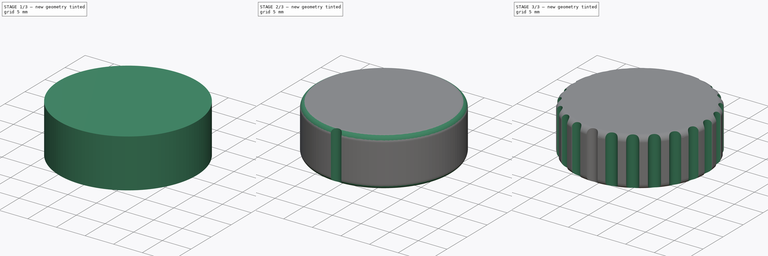
[diagram: build sequence overview — one tinted view per stage of 3, left to right]
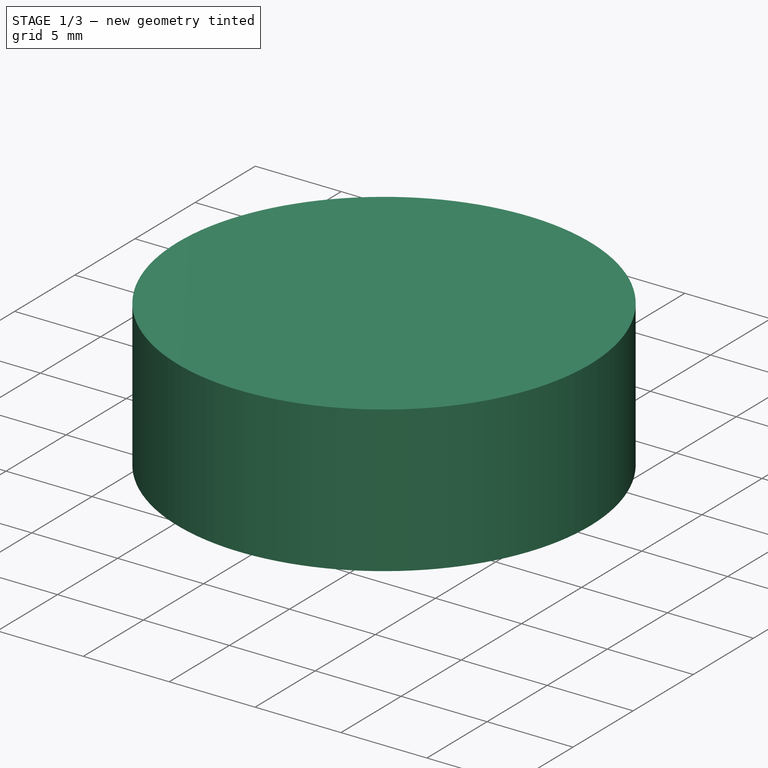
[diagram: stage 1 of 3 — iso view after this stage's code; geometry added in this stage tinted green]
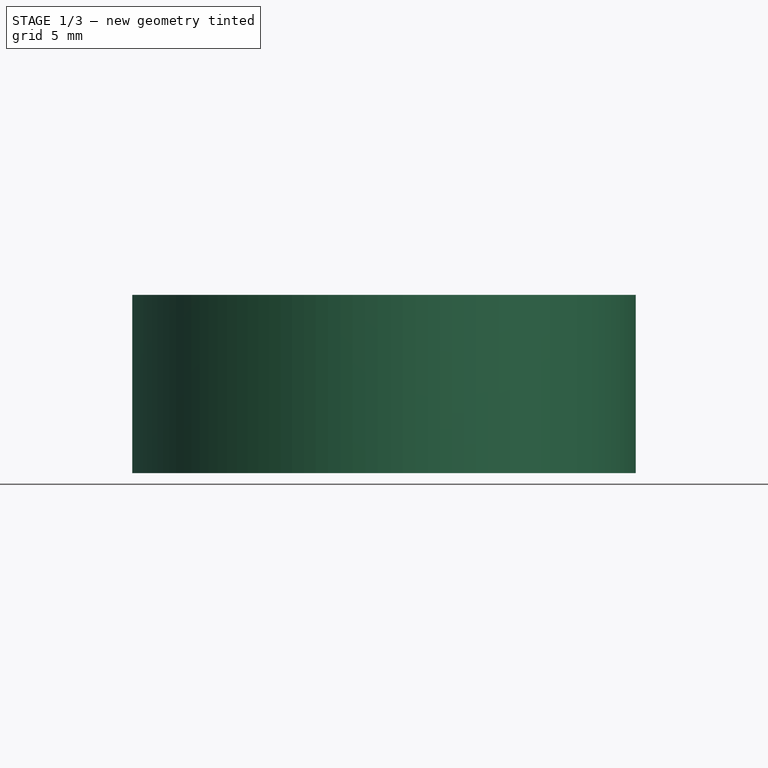
[diagram: stage 1 of 3 — front view after this stage's code; geometry added in this stage tinted green]
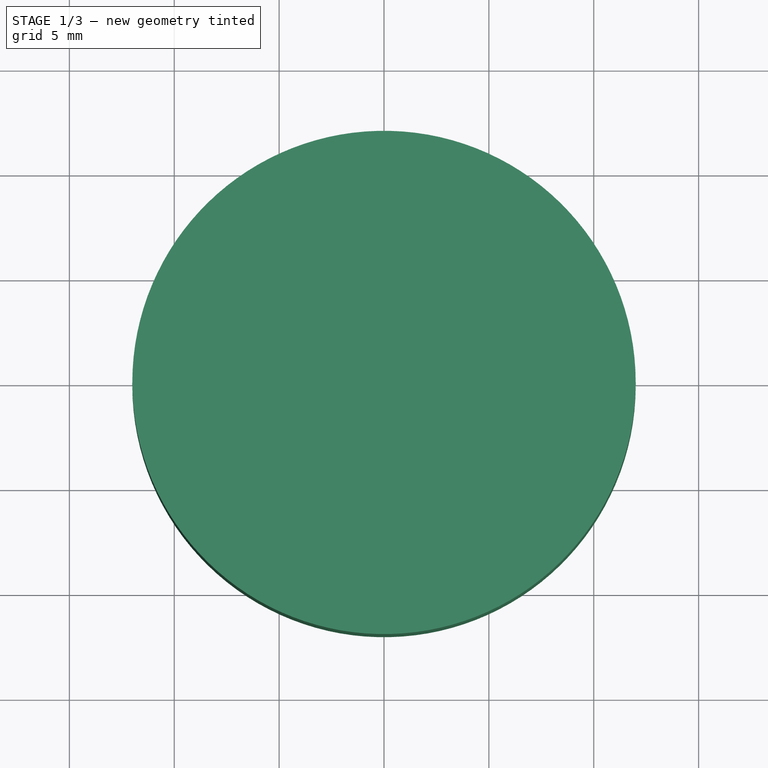
[diagram: stage 1 of 3 — top view after this stage's code; geometry added in this stage tinted green]
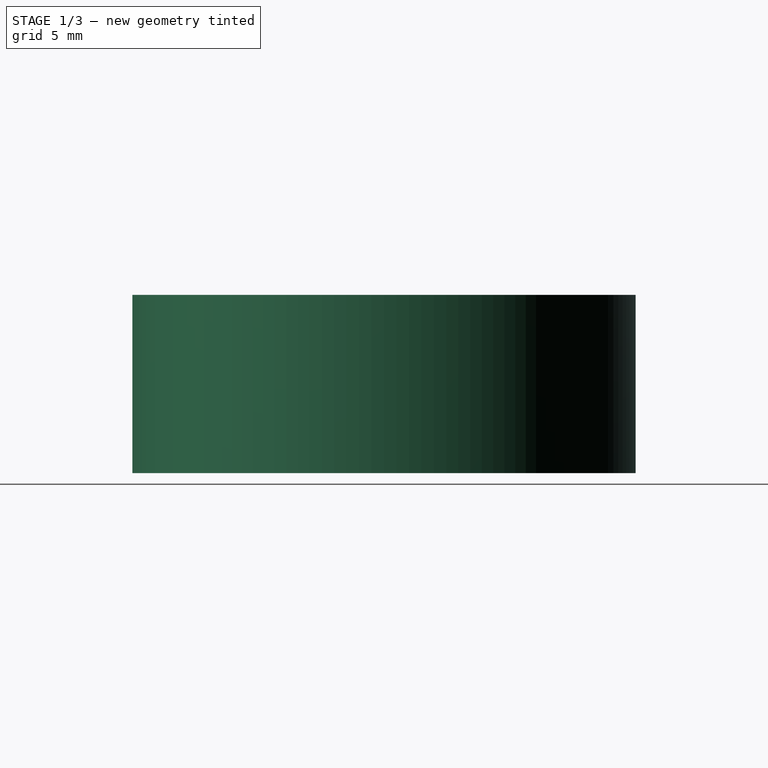
[diagram: stage 1 of 3 — right view after this stage's code; geometry added in this stage tinted green]
FCSTD DOCUMENT  (FreeCAD 0.16R5861 (Git))
Label: lcd_knob_v0.2
License: All rights reserved
LicenseURL: http://en.wikipedia.org/wiki/All_rights_reserved
objects: Sketcher::SketchObject×8, PartDesign::Pocket×3, PartDesign::Fillet×2, PartDesign::Pad×1, PartDesign::PolarPattern×1
note: 19 computed .brp shape members not serialized (recipe doc carries the construction recipe); baked Part::Feature solids carry a one-line shape summary decoded from their .brp

FEATURE [Sketcher::SketchObject] Sketch
  sketch-geometry (1):
    g0: Circle CenterX=0 CenterY=0 CenterZ=0 NormalX=0 NormalY=0 NormalZ=1 Radius=12
  constraints (2):
    c: Coincident(g0,g-1)
    c: Radius(g0) = 12
FEATURE [PartDesign::Pad] Pad
  Length = 14
  Length2 = 100
  Sketch = -> Sketch
  Type = 0
FEATURE [Sketcher::SketchObject] Sketch005
  Placement = pos=(0,0,0) rot=(1,0,0;3.14159rad)
  sketch-geometry (4):
    g0: LineSegment StartX=-14.9 StartY=1.5 StartZ=0 EndX=-11.9 EndY=1.5 EndZ=0
    g1: LineSegment StartX=-11.9 StartY=1.5 StartZ=0 EndX=-11.9 EndY=-1.5 EndZ=0
    g2: LineSegment StartX=-11.9 StartY=-1.5 StartZ=0 EndX=-14.9 EndY=-1.5 EndZ=0
    g3: LineSegment StartX=-14.9 StartY=-1.5 StartZ=0 EndX=-14.9 EndY=1.5 EndZ=0
  constraints (12):
    c: Coincident(g0,g1)
    c: Coincident(g1,g2)
    c: Coincident(g2,g3)
    c: Coincident(g3,g0)
    c: Horizontal(g0)
    c: Horizontal(g2)
    c: Vertical(g1)
    c: Vertical(g3)
    c: DistanceY(g1) = -3
    c: DistanceY(g-1,g1) = -1.5
    c: DistanceX(g-1,g0) = -11.9
    c: DistanceX(g2) = -3
FEATURE [Sketcher::SketchObject] Sketch006
  Placement = pos=(-11.9,0,0) rot=(0.57735,-0.57735,-0.57735;2.0944rad)
  sketch-geometry (1):
    g0: Circle CenterX=0 CenterY=3 CenterZ=0 NormalX=0 NormalY=0 NormalZ=1 Radius=1.75
  constraints (3):
    c: PointOnObject(g0,g-2)
    c: DistanceY(g-1,g0) = 3
    c: Radius(g0) = 1.75
FEATURE [Sketcher::SketchObject] Sketch007
  Placement = pos=(0,0,0) rot=(1,0,0;3.14159rad)
  sketch-geometry (6):
    g0: LineSegment StartX=-7.5 StartY=3 StartZ=0 EndX=-5 EndY=3 EndZ=0
    g1: LineSegment StartX=-5 StartY=3 StartZ=0 EndX=-5 EndY=-3 EndZ=0
    g2: LineSegment StartX=-5 StartY=-3 StartZ=0 EndX=-7.5 EndY=-3 EndZ=0
    g3: LineSegment StartX=-7.5 StartY=-3 StartZ=0 EndX=-7.5 EndY=3 EndZ=0
    g4: LineSegment [constr] StartX=-5 StartY=-3 StartZ=0 EndX=0 EndY=0 EndZ=0
    g5: LineSegment [constr] StartX=0 StartY=0 StartZ=0 EndX=-5 EndY=3 EndZ=0
  constraints (16):
    c: Coincident(g0,g1)
    c: Coincident(g1,g2)
    c: Coincident(g2,g3)
    c: Coincident(g3,g0)
    c: Horizontal(g0)
    c: Horizontal(g2)
    c: Vertical(g1)
    c: Vertical(g3)
    c: Coincident(g1,g4)
    c: Coincident(g4,g-1)
    c: Coincident(g4,g5)
    c: Coincident(g5,g0)
    c: Equal(g5,g4)
    c: DistanceX(g0) = 2.5
    c: DistanceY(g1) = -6
    c: DistanceX(g-1,g0) = -5
FEATURE [Sketcher::SketchObject] Sketch009
  Placement = pos=(0,0,14) rot=(0,0,1;0rad)
  Support = -> Pad [Face3]
  sketch-geometry (3):
    g0: LineSegment [constr] StartX=5 StartY=-14.6007 StartZ=0 EndX=5 EndY=15.1118 EndZ=0
    g1: ArcOfCircle CenterX=5 CenterY=0 CenterZ=0 NormalX=0 NormalY=0 NormalZ=1 Radius=9 StartAngle=4.71239 EndAngle=7.85398
    g2: LineSegment StartX=5 StartY=9 StartZ=0 EndX=5 EndY=-9 EndZ=0
  constraints (10):
    c: Vertical(g0)
    c: DistanceX(g-1,g0) = 5
    c: Radius(g1) = 9
    c: PointOnObject(g1,g-1)
    c: PointOnObject(g1,g0)
    c: PointOnObject(g1,g0)
    c: PointOnObject(g1,g0)
    c: Vertical(g2)
    c: Coincident(g2,g1)
    c: Coincident(g2,g1)
FEATURE [Sketcher::SketchObject] Sketch010
  Placement = pos=(0,0,14) rot=(0,0,1;0rad)
  Support = -> Pad [Face3]
  sketch-geometry (1):
    g0: Circle CenterX=0 CenterY=0 CenterZ=0 NormalX=0 NormalY=0 NormalZ=1 Radius=15
  constraints (2):
    c: Coincident(g0,g-1)
    c: Radius(g0) = 15
FEATURE [PartDesign::Pocket] Pocket
  Length = 5.5
  Sketch = -> Sketch010
  Type = 0
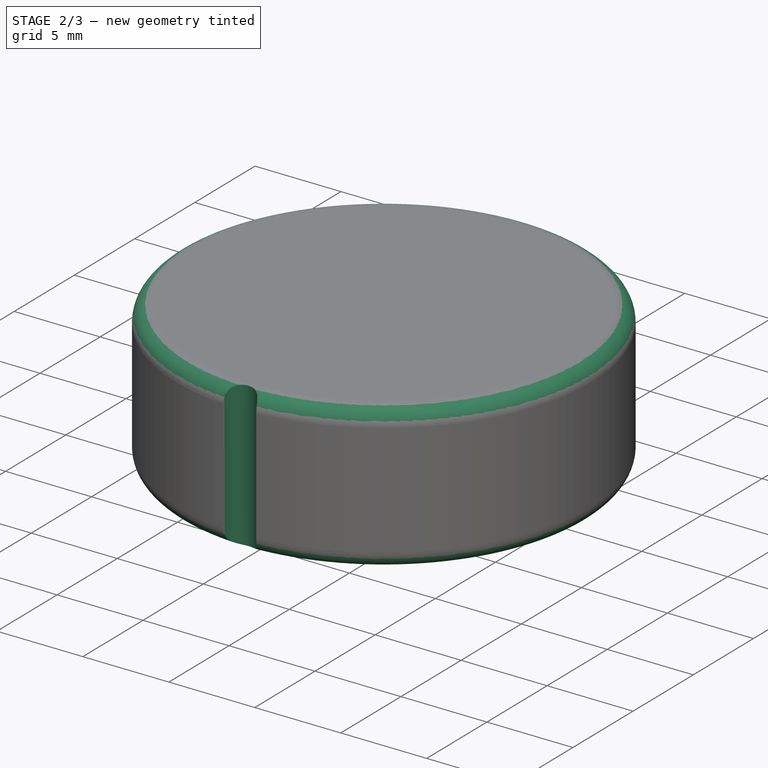
[diagram: stage 2 of 3 — iso view after this stage's code; geometry added in this stage tinted green]
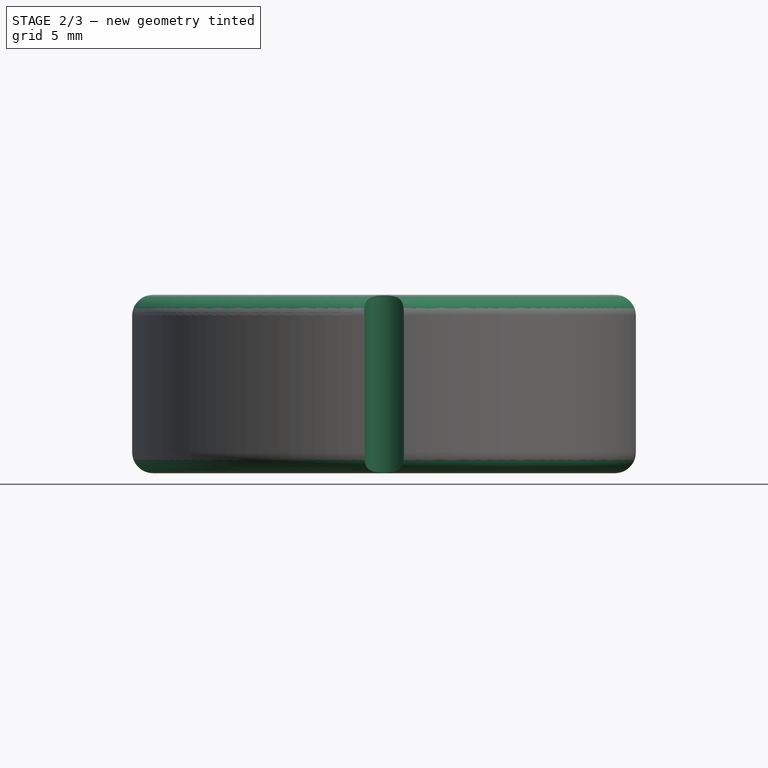
[diagram: stage 2 of 3 — front view after this stage's code; geometry added in this stage tinted green]
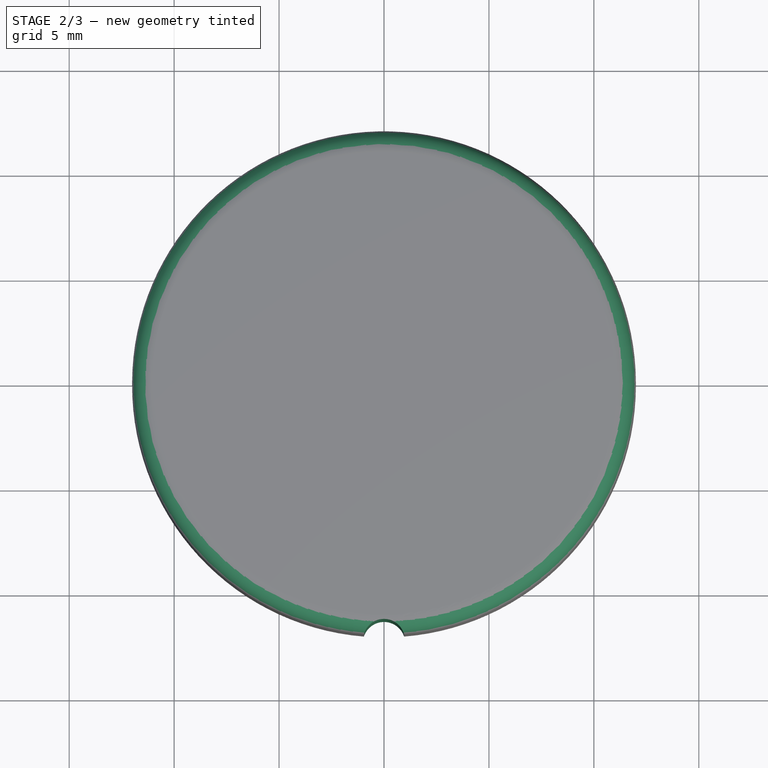
[diagram: stage 2 of 3 — top view after this stage's code; geometry added in this stage tinted green]
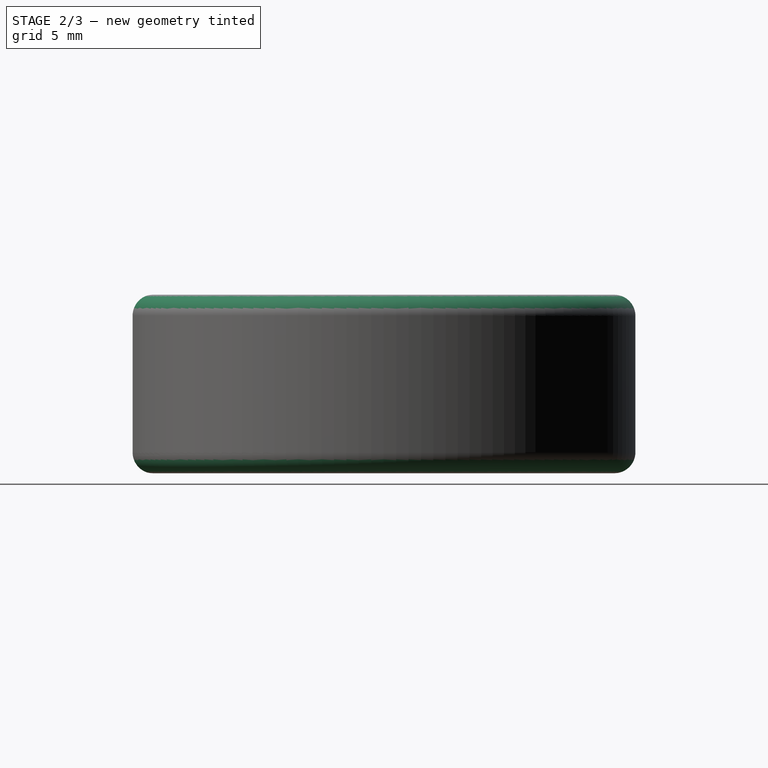
[diagram: stage 2 of 3 — right view after this stage's code; geometry added in this stage tinted green]
FEATURE [PartDesign::Fillet] Fillet
  Base = -> Pocket [Edge3]
  Radius = 1
FEATURE [PartDesign::Fillet] Fillet001
  Base = -> Fillet [Edge3]
  Radius = 1
FEATURE [Sketcher::SketchObject] Sketch004
  Placement = pos=(0,0,0) rot=(1,0,0;3.14159rad)
  Support = -> Fillet001 [Face4]
  sketch-geometry (4):
    g0: ArcOfCircle CenterX=0 CenterY=13.25 CenterZ=0 NormalX=0 NormalY=0 NormalZ=1 Radius=1 StartAngle=0 EndAngle=3.14159
    g1: ArcOfCircle CenterX=0 CenterY=12.25 CenterZ=0 NormalX=0 NormalY=0 NormalZ=1 Radius=1 StartAngle=3.14159 EndAngle=6.28319
    g2: LineSegment StartX=-1 StartY=13.25 StartZ=0 EndX=-1 EndY=12.25 EndZ=0
    g3: LineSegment StartX=1 StartY=13.25 StartZ=0 EndX=1 EndY=12.25 EndZ=0
  constraints (10):
    c: Tangent(g0,g3) = 1.5708
    c: Tangent(g0,g2) = -1.5708
    c: Tangent(g2,g1) = -1.5708
    c: Tangent(g3,g1) = 1.5708
    c: Vertical(g2)
    c: Equal(g0,g1)
    c: PointOnObject(g0,g-2)
    c: DistanceY(g-1,g1) = 12.25
    c: Radius(g1) = 1
    c: DistanceY(g3) = -1
FEATURE [PartDesign::Pocket] Pocket001
  Length = 5
  Sketch = -> Sketch004
  Type = 1
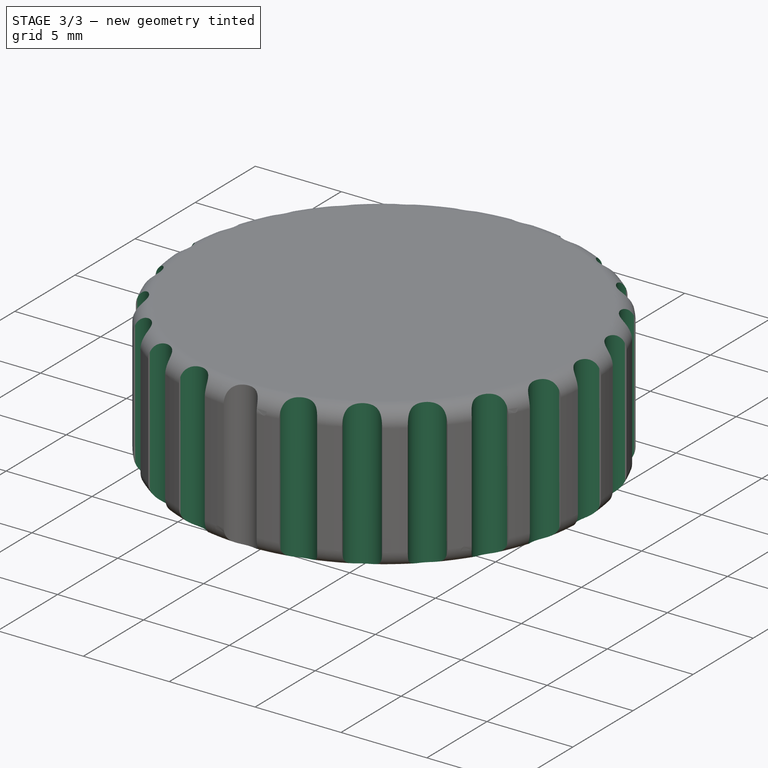
[diagram: stage 3 of 3 — iso view after this stage's code; geometry added in this stage tinted green]
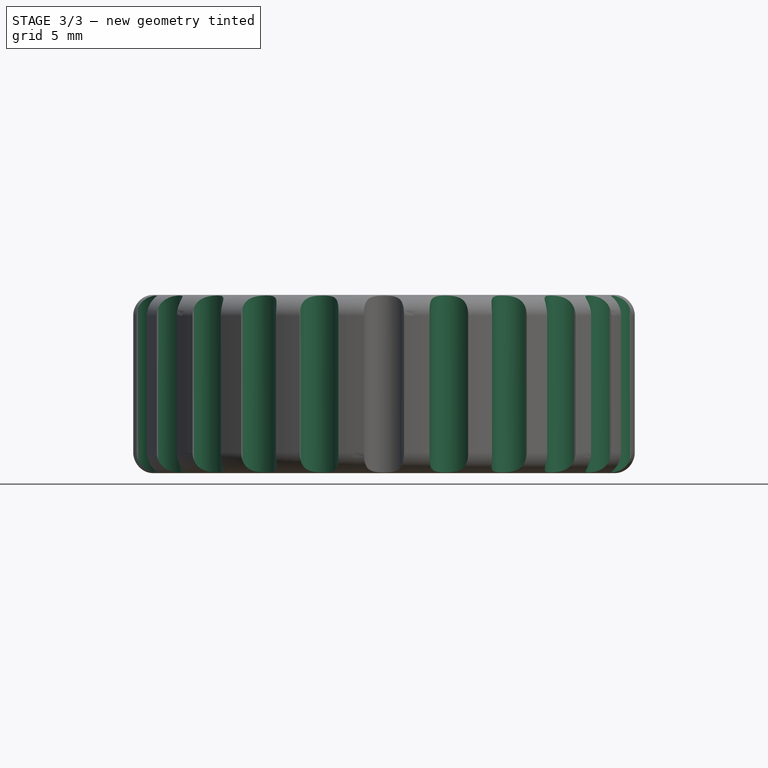
[diagram: stage 3 of 3 — front view after this stage's code; geometry added in this stage tinted green]
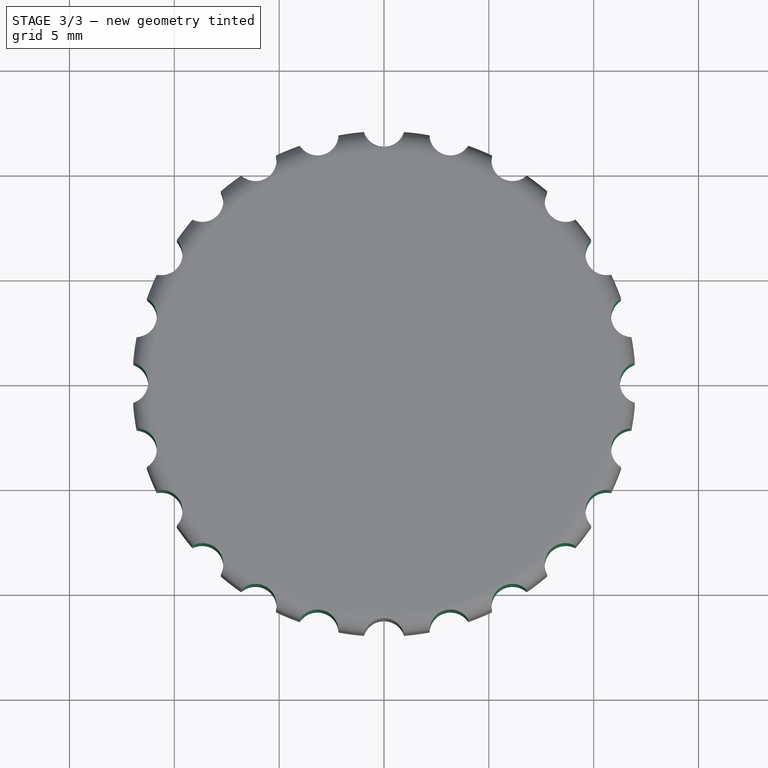
[diagram: stage 3 of 3 — top view after this stage's code; geometry added in this stage tinted green]
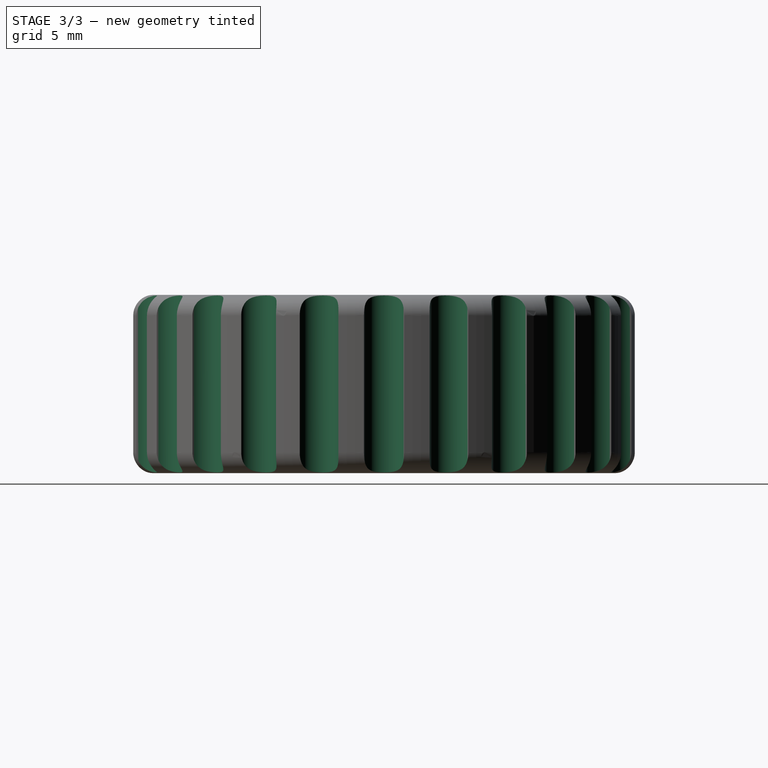
[diagram: stage 3 of 3 — right view after this stage's code; geometry added in this stage tinted green]
FEATURE [PartDesign::PolarPattern] PolarPattern
  Angle = 360
  Axis = -> Sketch004 [N_Axis]
  Occurrences = 24
  Originals = -> [Pocket001]
FEATURE [Sketcher::SketchObject] Sketch003
  Placement = pos=(0,0,0) rot=(1,0,0;3.14159rad)
  Support = -> PolarPattern [Face40]
  sketch-geometry (2):
    g0: ArcOfCircle CenterX=0 CenterY=0 CenterZ=0 NormalX=0 NormalY=0 NormalZ=1 Radius=3.05 StartAngle=2.18075 EndAngle=7.24402
    g1: LineSegment StartX=1.74714 StartY=2.5 StartZ=0 EndX=-1.74714 EndY=2.5 EndZ=0
  constraints (6):
    c: Coincident(g0,g-1)
    c: Radius(g0) = 3.05
    c: Horizontal(g1)
    c: Coincident(g0,g1)
    c: Coincident(g0,g1)
    c: DistanceY(g-1,g0) = 2.5
FEATURE [PartDesign::Pocket] Pocket002
  Length = 3.5
  Sketch = -> Sketch003
  Type = 0
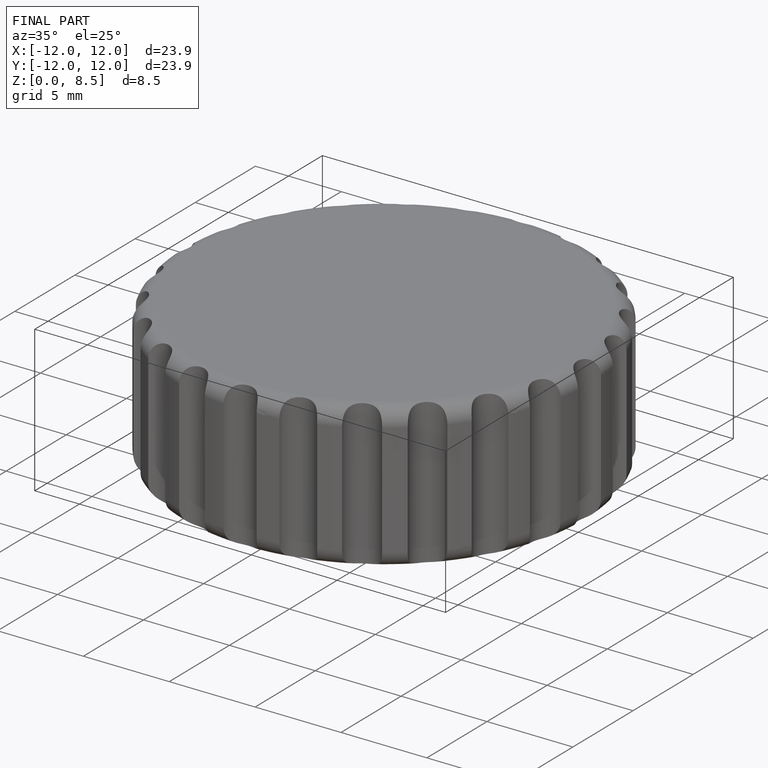
[diagram: finished part — iso view with bounding-box wireframe]
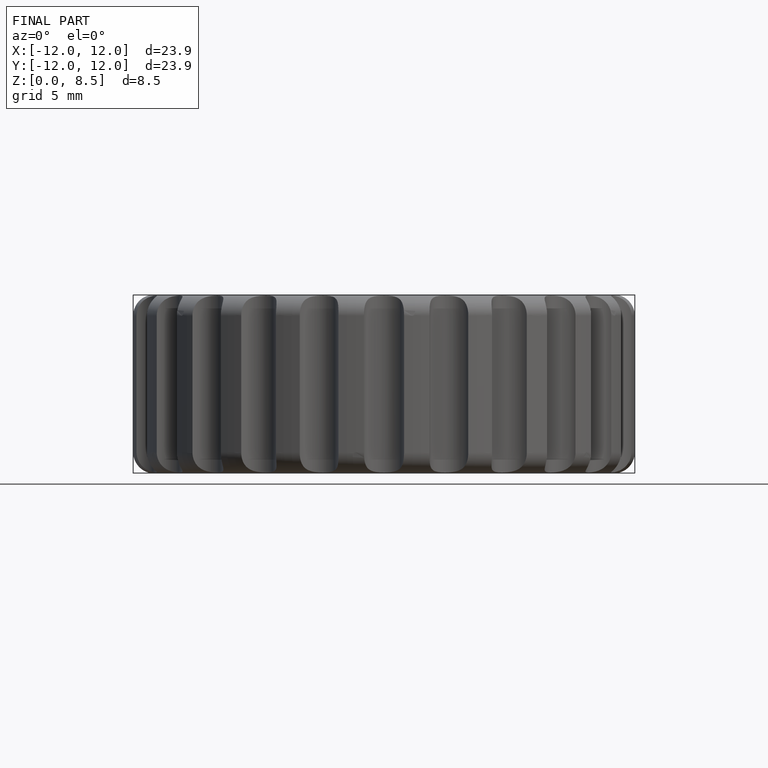
[diagram: finished part — front view with bounding-box wireframe]
